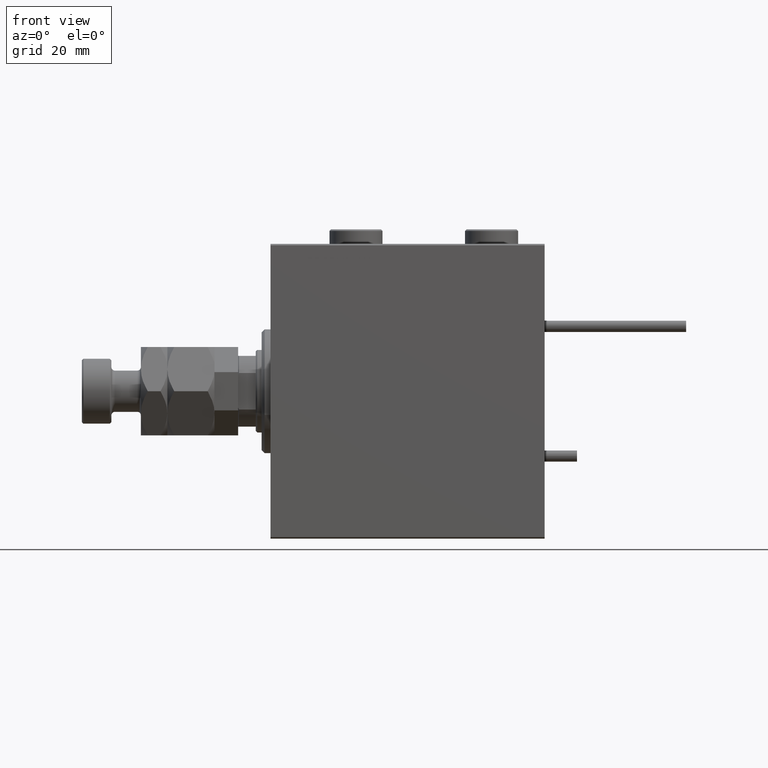
[diagram: clean part render]
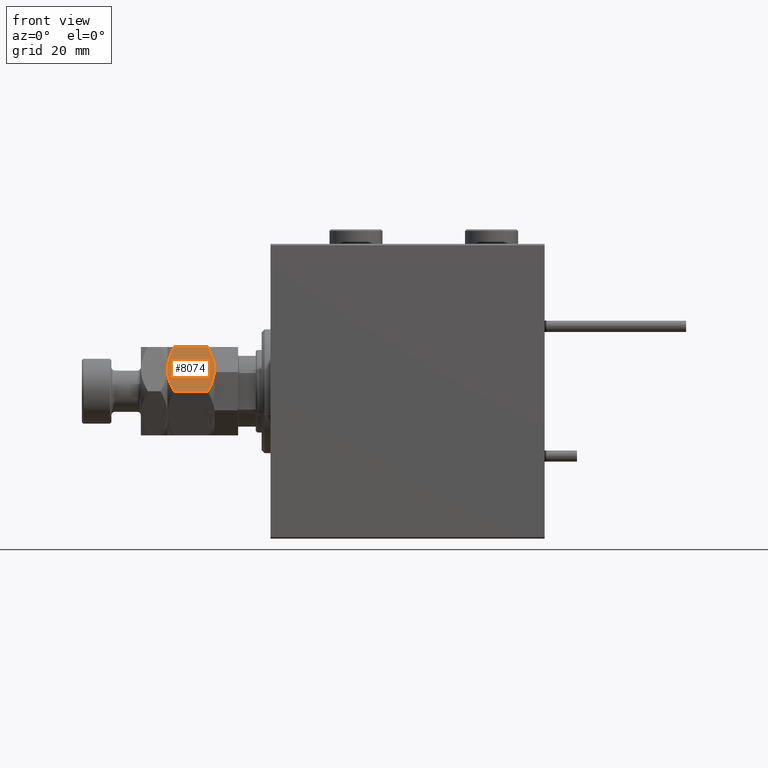
[diagram: same view with one face highlighted and labeled with its STEP entity id]
A machine part, front view. The second image highlights one B-rep face of the part: STEP entity #8074.
In plain terms, the highlighted planar face has unit normal (0, 0.866, -0.5).
Its self-contained STEP definition (entity closure, byte-faithful):
#1175 = VECTOR ( 'NONE', #13512, 1000.000000000000000 ) ;
#1300 = LINE ( 'NONE', #20888, #30541 ) ;
#1490 = CARTESIAN_POINT ( 'NONE',  ( 7.499999999999993783, -12.99038105676658006, 16.00000000000000000 ) ) ;
#1996 = CARTESIAN_POINT ( 'NONE',  ( -2.796947266322166691E-15, -17.32050807568877104, 2.320508075688761718 ) ) ;
#3953 = CARTESIAN_POINT ( 'NONE',  ( 2.383929548160349299, -15.94414570932928576, 1.060479031370876957 ) ) ;
#4267 = CARTESIAN_POINT ( 'NONE',  ( 8.156876182308243628, -12.61113341608666083, -1.722865014715246890E-15 ) ) ;
#5121 = CARTESIAN_POINT ( 'NONE',  ( 13.82525345580783416, -9.338494271363316557, 14.35773215783021861 ) ) ;
#5647 = CARTESIAN_POINT ( 'NONE',  ( 10.08691881950258917, -11.49682277995505331, 15.76967007806078591 ) ) ;
#6299 = DIRECTION ( 'NONE',  ( -0.8660254037844388186, -0.4999999999999996669, 0.000000000000000000 ) ) ;
#6334 = CARTESIAN_POINT ( 'NONE',  ( 6.843123817691747490, -13.36962869744650284, 16.00000000000000711 ) ) ;
#6820 = FACE_OUTER_BOUND ( 'NONE', #35100, .T. ) ;
#8074 = ADVANCED_FACE ( 'NONE', ( #6820 ), #39577, .F. ) ;
#8633 = ORIENTED_EDGE ( 'NONE', *, *, #31262, .F. ) ;
#8867 = B_SPLINE_CURVE_WITH_KNOTS ( 'NONE', 3,
 ( #12269, #12530, #24335, #3953, #16828, #21368 ),
 .UNSPECIFIED., .F., .F.,
 ( 4, 2, 4 ),
 ( 0.008977392552884455937, 0.01343452311421657053, 0.01789165367554868685 ),
 .UNSPECIFIED. ) ;
#9074 = AXIS2_PLACEMENT_3D ( 'NONE', #51177, #46876, #6299 ) ;
#9551 = CARTESIAN_POINT ( 'NONE',  ( 4.247772349543483372, -14.86805556622359425, 15.55242859148698109 ) ) ;
#9816 = CARTESIAN_POINT ( 'NONE',  ( 1.176108425306638505, -16.64148155974179488, 14.35851844025821755 ) ) ;
#11532 = CARTESIAN_POINT ( 'NONE',  ( 10.75222765045651308, -11.11270654730956586, 0.4475714085130263475 ) ) ;
#12073 = ORIENTED_EDGE ( 'NONE', *, *, #32985, .F. ) ;
#12269 = CARTESIAN_POINT ( 'NONE',  ( 7.499999999999994671, -12.99038105676658184, 0.000000000000000000 ) ) ;
#12530 = CARTESIAN_POINT ( 'NONE',  ( 6.195449321423083688, -13.74356374221447119, -1.770863548392988866E-15 ) ) ;
#12870 = B_SPLINE_CURVE_WITH_KNOTS ( 'NONE', 3,
 ( #51719, #9816, #21893, #9551, #42604, #42866, #6334, #51207 ),
 .UNSPECIFIED., .F., .F.,
 ( 4, 2, 2, 4 ),
 ( 2.544309033646407248E-07, 0.004488823491893905240, 0.006733108022389175384, 0.008977392552884447263 ),
 .UNSPECIFIED. ) ;
#13512 = DIRECTION ( 'NONE',  ( -0.000000000000000000, -0.000000000000000000, -1.000000000000000000 ) ) ;
#14094 = VERTEX_POINT ( 'NONE', #1996 ) ;
#14764 = EDGE_CURVE ( 'NONE', #20455, #18462, #22633, .T. ) ;
#16828 = CARTESIAN_POINT ( 'NONE',  ( 1.174746544192159625, -16.64226784216984711, 1.642267842169777836 ) ) ;
#18462 = VERTEX_POINT ( 'NONE', #28521 ) ;
#19572 = CARTESIAN_POINT ( 'NONE',  ( 15.00000000000000000, -8.660254037844389075, 2.320508075688767047 ) ) ;
#20455 = VERTEX_POINT ( 'NONE', #1490 ) ;
#20888 = CARTESIAN_POINT ( 'NONE',  ( -3.035766082959412415E-15, -17.32050807568877104, 16.00000000000000000 ) ) ;
#20891 = EDGE_CURVE ( 'NONE', #31941, #30294, #33698, .T. ) ;
#21368 = CARTESIAN_POINT ( 'NONE',  ( -2.796947266322166691E-15, -17.32050807568877104, 2.320508075688761718 ) ) ;
#21467 = CARTESIAN_POINT ( 'NONE',  ( 8.804550678576907430, -12.23719837131869248, 16.00000000000000000 ) ) ;
#21893 = CARTESIAN_POINT ( 'NONE',  ( 2.378834511187501111, -15.94708733029709791, 14.93551393225600066 ) ) ;
#22633 = B_SPLINE_CURVE_WITH_KNOTS ( 'NONE', 3,
 ( #50514, #21467, #5647, #30051, #5121, #46474 ),
 .UNSPECIFIED., .F., .F.,
 ( 4, 2, 4 ),
 ( 0.008977392552884447263, 0.01343452311421656532, 0.01789165367554868338 ),
 .UNSPECIFIED. ) ;
#23596 = CARTESIAN_POINT ( 'NONE',  ( 8.823580389329300999, -12.22621156269320331, 0.05953537397470176629 ) ) ;
#24335 = CARTESIAN_POINT ( 'NONE',  ( 4.913081180497406386, -14.48393933357810681, 0.2303299219392160313 ) ) ;
#24801 = ORIENTED_EDGE ( 'NONE', *, *, #14764, .F. ) ;
#28521 = CARTESIAN_POINT ( 'NONE',  ( 15.00000000000000000, -8.660254037844389075, 13.67949192431123961 ) ) ;
#28683 = CARTESIAN_POINT ( 'NONE',  ( 13.82389157469335750, -9.339280553791367012, 1.641481559741792884 ) ) ;
#30051 = CARTESIAN_POINT ( 'NONE',  ( 12.61607045183964360, -10.03661640420387080, 14.93952096862912171 ) ) ;
#30294 = VERTEX_POINT ( 'NONE', #38551 ) ;
#30541 = VECTOR ( 'NONE', #42400, 1000.000000000000000 ) ;
#30761 = ORIENTED_EDGE ( 'NONE', *, *, #30882, .T. ) ;
#30882 = EDGE_CURVE ( 'NONE', #37581, #14094, #1300, .T. ) ;
#31262 = EDGE_CURVE ( 'NONE', #37581, #20455, #12870, .T. ) ;
#31941 = VERTEX_POINT ( 'NONE', #34000 ) ;
#32985 = EDGE_CURVE ( 'NONE', #30294, #14094, #8867, .T. ) ;
#33698 = B_SPLINE_CURVE_WITH_KNOTS ( 'NONE', 3,
 ( #19572, #28683, #45114, #11532, #41074, #23596, #4267, #40010 ),
 .UNSPECIFIED., .F., .F.,
 ( 4, 2, 2, 4 ),
 ( 2.544309033642853415E-07, 0.004488823491893907842, 0.006733108022389181456, 0.008977392552884455937 ),
 .UNSPECIFIED. ) ;
#33911 = LINE ( 'NONE', #50335, #1175 ) ;
#34000 = CARTESIAN_POINT ( 'NONE',  ( 15.00000000000000000, -8.660254037844389075, 2.320508075688767047 ) ) ;
#34909 = ORIENTED_EDGE ( 'NONE', *, *, #20891, .F. ) ;
#35100 = EDGE_LOOP ( 'NONE', ( #34909, #39481, #24801, #8633, #30761, #12073 ) ) ;
#37581 = VERTEX_POINT ( 'NONE', #51676 ) ;
#38551 = CARTESIAN_POINT ( 'NONE',  ( 7.499999999999994671, -12.99038105676658184, 0.000000000000000000 ) ) ;
#39481 = ORIENTED_EDGE ( 'NONE', *, *, #44152, .F. ) ;
#39577 = PLANE ( 'NONE',  #9074 ) ;
#40010 = CARTESIAN_POINT ( 'NONE',  ( 7.499999999999994671, -12.99038105676658184, 0.000000000000000000 ) ) ;
#41074 = CARTESIAN_POINT ( 'NONE',  ( 10.11832554202262102, -11.47869010025374870, 0.2838026619462938327 ) ) ;
#42400 = DIRECTION ( 'NONE',  ( -0.000000000000000000, -0.000000000000000000, -1.000000000000000000 ) ) ;
#42604 = CARTESIAN_POINT ( 'NONE',  ( 4.881674457977372761, -14.50207201327941320, 15.71619733805371411 ) ) ;
#42866 = CARTESIAN_POINT ( 'NONE',  ( 6.176419610670694560, -13.75455055083996214, 15.94046462602530312 ) ) ;
#44152 = EDGE_CURVE ( 'NONE', #18462, #31941, #33911, .T. ) ;
#45114 = CARTESIAN_POINT ( 'NONE',  ( 12.62116548881249756, -10.03367478323606754, 1.064486067744006892 ) ) ;
#46474 = CARTESIAN_POINT ( 'NONE',  ( 15.00000000000000000, -8.660254037844389075, 13.67949192431123961 ) ) ;
#46876 = DIRECTION ( 'NONE',  ( -0.4999999999999996669, 0.8660254037844388186, 0.000000000000000000 ) ) ;
#50335 = CARTESIAN_POINT ( 'NONE',  ( 15.00000000000000000, -8.660254037844389075, 16.00000000000000000 ) ) ;
#50514 = CARTESIAN_POINT ( 'NONE',  ( 7.499999999999993783, -12.99038105676658006, 16.00000000000000000 ) ) ;
#51177 = CARTESIAN_POINT ( 'NONE',  ( -3.035766082959412415E-15, -17.32050807568877104, 16.00000000000000000 ) ) ;
#51207 = CARTESIAN_POINT ( 'NONE',  ( 7.499999999999993783, -12.99038105676658006, 16.00000000000000000 ) ) ;
#51676 = CARTESIAN_POINT ( 'NONE',  ( -3.416099238086855886E-15, -17.32050807568877104, 13.67949192431124317 ) ) ;
#51719 = CARTESIAN_POINT ( 'NONE',  ( -3.416099238086855886E-15, -17.32050807568877104, 13.67949192431124317 ) ) ;